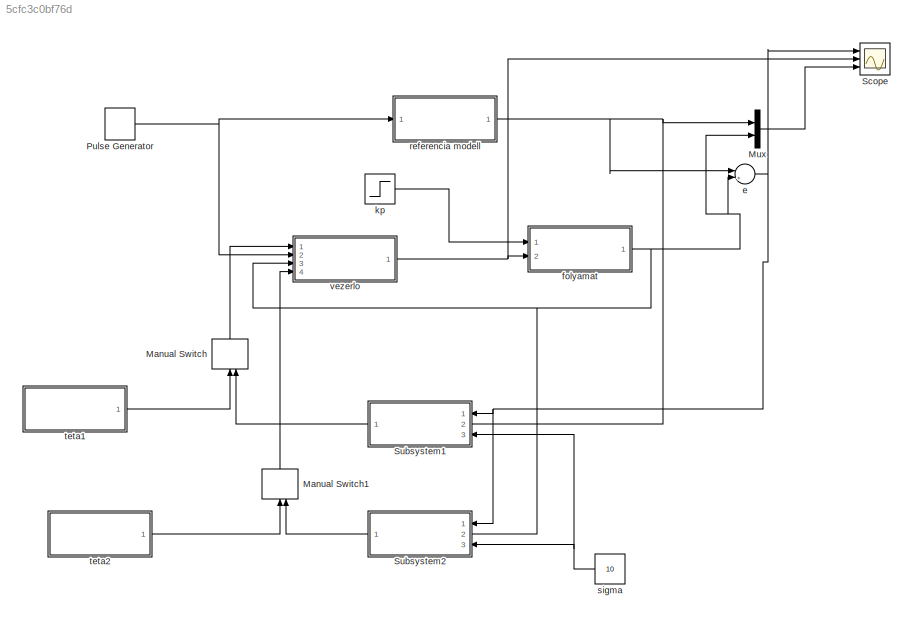
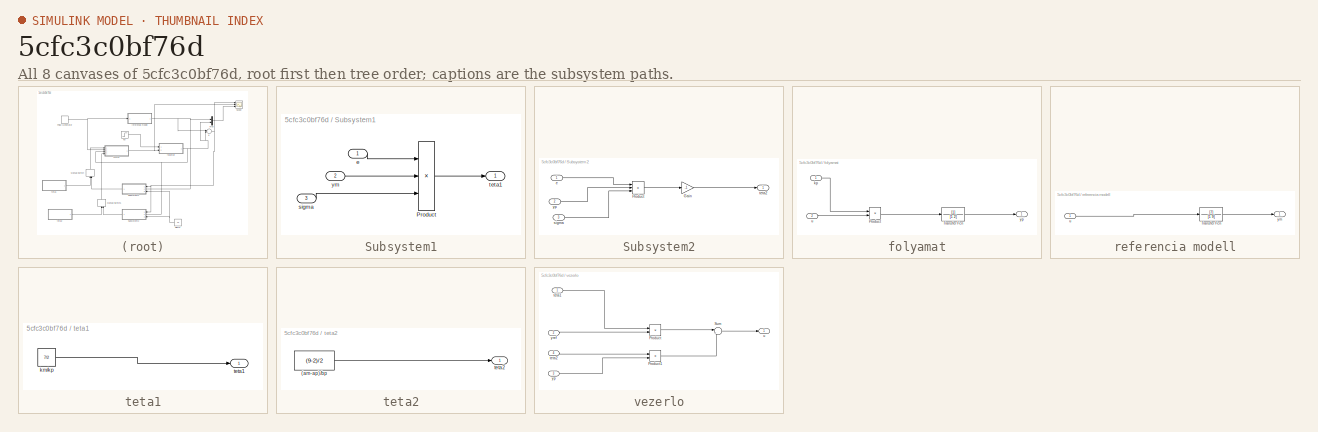
[diagram: thumbnail index - all 8 canvases of the model, root first then tree order]
MODEL slx_5cfc3c0bf76d
KIND model
CONFIG AbsTol = auto
CONFIG EnableMultiTasking = off
CONFIG FixedStep = auto
CONFIG MaxStep = auto
CONFIG MinStep = auto
CONFIG RelTol = 1e-3
CONFIG SampleTimeConstraint = Unconstrained
CONFIG SolverName = VariableStepAuto
CONFIG StartTime = 0.0
CONFIG StopTime = 20
BLOCK [ManualSwitch] Manual Switch
  NameLocation = right
BLOCK [ManualSwitch] Manual Switch1
  NameLocation = right
BLOCK [Mux] Mux
  DisplayOption = bar
  Inputs = 2
  Ports = [2, 1]
BLOCK [DiscretePulseGenerator] Pulse Generator
  Amplitude = 5
  Period = 1
  Ports = [0, 1]
  PulseType = Time based
  PulseWidth = 50
BLOCK [Scope] Scope
  Floating = off
  NumInputPorts = 3
  Ports = [3]
  ScopeSpecificationString = Simulink.scopes.TimeScopeBlockCfg('CurrentConfiguration', extmgr.ConfigurationSet(extmgr.Configuration('Core','General UI',true),extmgr.Configuration('Core','Source UI',true),extmgr.Configuration('Sources','WiredSimulink',true),extmgr.Configuration('Visuals','Time Domain',true,'SerializedDisplays',{struct('MinYLimReal','-2.72233','MaxYLimReal','1.94191','YLabelReal','','MinYLimMag','0.00000','MaxY...<+2743ch>
BLOCK [SubSystem] Subsystem1
  NameLocation = top
  Ports = [3, 1]
  RequestExecContextInheritance = off
BLOCK [Product] Subsystem1/Product
  Inputs = 3
  Ports = [3, 1]
BLOCK [Inport] Subsystem1/e
BLOCK [Inport] Subsystem1/sigma
  Port = 3
BLOCK [Outport] Subsystem1/teta1
BLOCK [Inport] Subsystem1/ym
  Port = 2
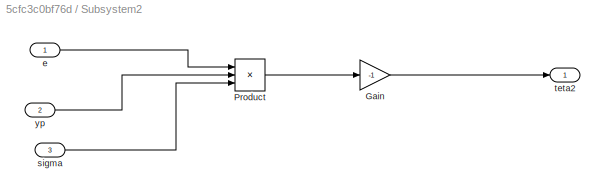
BLOCK [SubSystem] Subsystem2
  NameLocation = top
  Ports = [3, 1]
  RequestExecContextInheritance = off
BLOCK [Gain] Subsystem2/Gain
  Gain = -1
BLOCK [Product] Subsystem2/Product
  Inputs = 3
  Ports = [3, 1]
BLOCK [Inport] Subsystem2/e
BLOCK [Inport] Subsystem2/sigma
  Port = 3
BLOCK [Outport] Subsystem2/teta2
BLOCK [Inport] Subsystem2/yp
  Port = 2
BLOCK [Sum] e
  Inputs = |+-
  Ports = [2, 1]
BLOCK [SubSystem] folyamat
  Ports = [2, 1]
  RequestExecContextInheritance = off
BLOCK [Product] folyamat/Product
  Ports = [2, 1]
BLOCK [TransferFcn] folyamat/Transfer Fcn
  Denominator = [1 2]
BLOCK [Inport] folyamat/kp
BLOCK [Inport] folyamat/u
  Port = 2
BLOCK [Outport] folyamat/yp
BLOCK [Step] kp
  After = 8
  Before = 2
  SampleTime = 0
  Time = 10
BLOCK [SubSystem] referencia modell
  Ports = [1, 1]
  RequestExecContextInheritance = off
BLOCK [TransferFcn] referencia modell/Transfer Fcn
  Denominator = [1 9]
  Numerator = [7]
BLOCK [Inport] referencia modell/u
BLOCK [Outport] referencia modell/ym
BLOCK [Constant] sigma
  NameLocation = top
  Value = 10
BLOCK [SubSystem] teta1
  Ports = [0, 1]
  RequestExecContextInheritance = off
BLOCK [Constant] teta1/km//kp
  Value = 7/2
BLOCK [Outport] teta1/teta1
BLOCK [SubSystem] teta2
  Ports = [0, 1]
  RequestExecContextInheritance = off
BLOCK [Constant] teta2/(am-ap)//bp
  Value = (9-2)/2
BLOCK [Outport] teta2/teta2
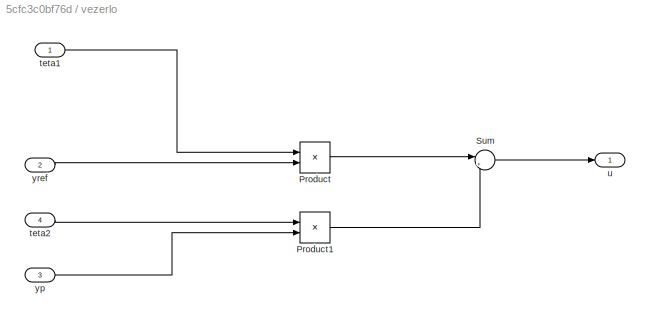
BLOCK [SubSystem] vezerlo
  Ports = [4, 1]
  RequestExecContextInheritance = off
BLOCK [Product] vezerlo/Product
  Ports = [2, 1]
BLOCK [Product] vezerlo/Product1
  Ports = [2, 1]
BLOCK [Sum] vezerlo/Sum
  Inputs = |+-
  Ports = [2, 1]
BLOCK [Inport] vezerlo/teta1
BLOCK [Inport] vezerlo/teta2
  Port = 4
BLOCK [Outport] vezerlo/u
BLOCK [Inport] vezerlo/yp
  Port = 3
BLOCK [Inport] vezerlo/yref
  Port = 2
LINE Manual Switch1:1 -> vezerlo:4
LINE Manual Switch:1 -> vezerlo:1
LINE Mux:1 -> Scope:3
NET Pulse Generator:1 -> referencia modell:1, vezerlo:2
LINE Subsystem1/Product:1 -> Subsystem1/teta1:1
LINE Subsystem1/e:1 -> Subsystem1/Product:1
LINE Subsystem1/sigma:1 -> Subsystem1/Product:3
LINE Subsystem1/ym:1 -> Subsystem1/Product:2
LINE Subsystem1:1 -> Manual Switch:2
LINE Subsystem2/Gain:1 -> Subsystem2/teta2:1
LINE Subsystem2/Product:1 -> Subsystem2/Gain:1
LINE Subsystem2/e:1 -> Subsystem2/Product:1
LINE Subsystem2/sigma:1 -> Subsystem2/Product:3
LINE Subsystem2/yp:1 -> Subsystem2/Product:2
LINE Subsystem2:1 -> Manual Switch1:2
NET e:1 -> Scope:1, Subsystem1:1, Subsystem2:1
LINE folyamat/Product:1 -> folyamat/Transfer Fcn:1
LINE folyamat/Transfer Fcn:1 -> folyamat/yp:1
LINE folyamat/kp:1 -> folyamat/Product:1
LINE folyamat/u:1 -> folyamat/Product:2
NET folyamat:1 -> Mux:2, Subsystem2:2, e:2, vezerlo:3
LINE kp:1 -> folyamat:1
LINE referencia modell/Transfer Fcn:1 -> referencia modell/ym:1
LINE referencia modell/u:1 -> referencia modell/Transfer Fcn:1
NET referencia modell:1 -> Mux:1, Subsystem1:2, e:1
NET sigma:1 -> Subsystem1:3, Subsystem2:3
LINE teta1/km//kp:1 -> teta1/teta1:1
LINE teta1:1 -> Manual Switch:1
LINE teta2/(am-ap)//bp:1 -> teta2/teta2:1
LINE teta2:1 -> Manual Switch1:1
LINE vezerlo/Product1:1 -> vezerlo/Sum:2
LINE vezerlo/Product:1 -> vezerlo/Sum:1
LINE vezerlo/Sum:1 -> vezerlo/u:1
LINE vezerlo/teta1:1 -> vezerlo/Product:1
LINE vezerlo/teta2:1 -> vezerlo/Product1:1
LINE vezerlo/yp:1 -> vezerlo/Product1:2
LINE vezerlo/yref:1 -> vezerlo/Product:2
NET vezerlo:1 -> Scope:2, folyamat:2
note: NET lines group one-source signal fan-out (src -> all destinations, sorted); 1:1 wires keep LINE
